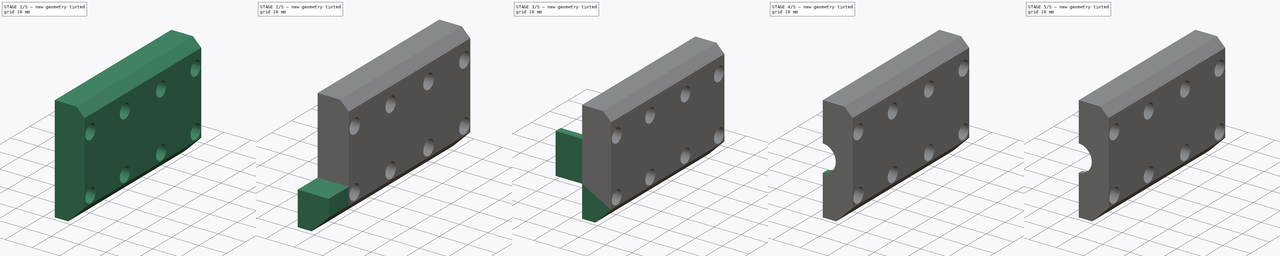
[diagram: build sequence overview — one tinted view per stage of 5, left to right]
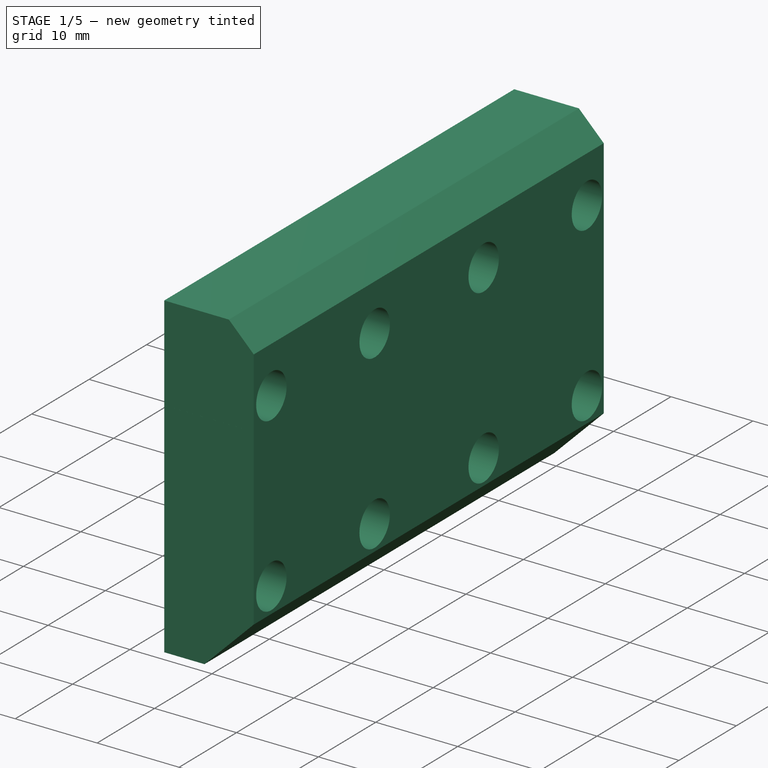
[diagram: stage 1 of 5 — iso view after this stage's code; geometry added in this stage tinted green]
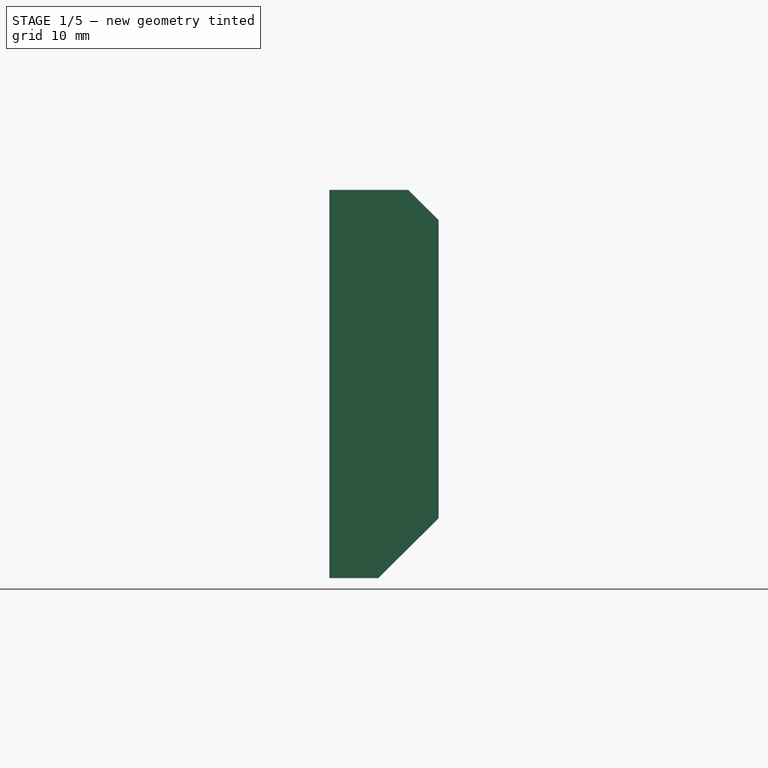
[diagram: stage 1 of 5 — front view after this stage's code; geometry added in this stage tinted green]
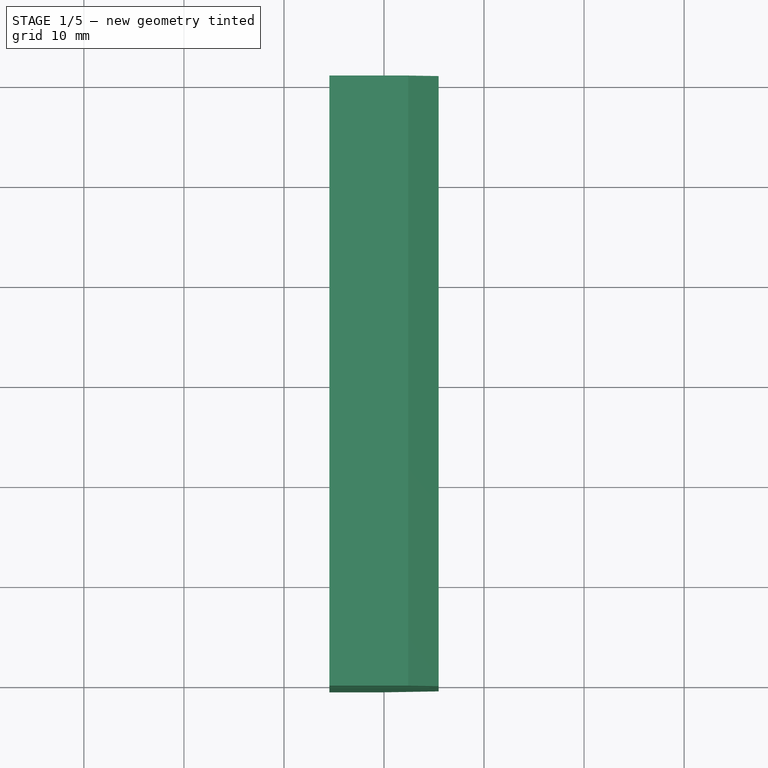
[diagram: stage 1 of 5 — top view after this stage's code; geometry added in this stage tinted green]
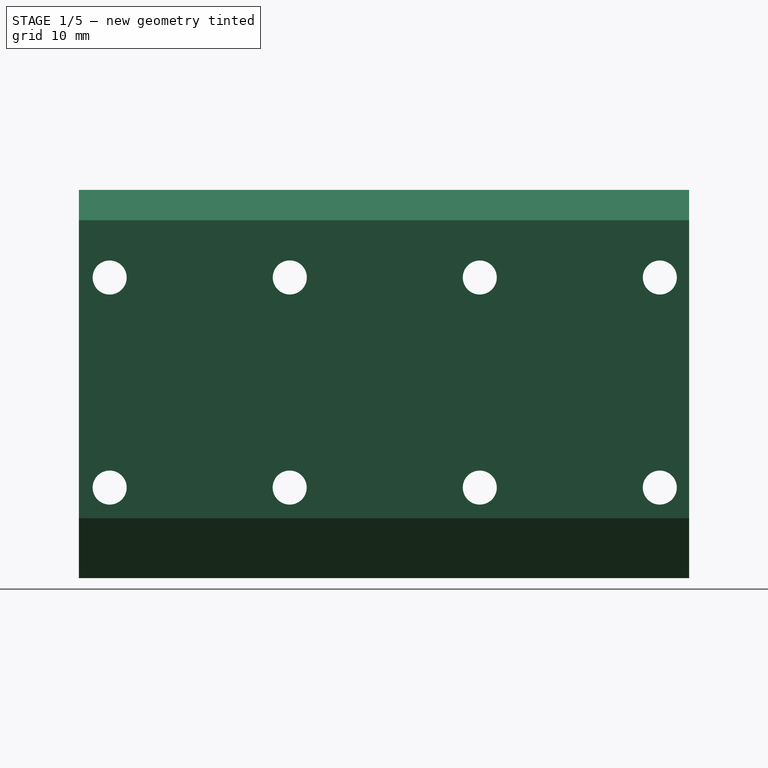
[diagram: stage 1 of 5 — right view after this stage's code; geometry added in this stage tinted green]
FCSTD DOCUMENT  (FreeCAD 1.0R39109 (Git))
Label: Y_clamp
License: All rights reserved
LicenseURL: http://en.wikipedia.org/wiki/All_rights_reserved
objects: PartDesign::Pocket×11, PartDesign::Pad×5, Sketcher::SketchObject×4, Part::Feature×1, PartDesign::FeatureBase×1, PartDesign::Body×1
note: 60 computed .brp shape members not serialized (recipe doc carries the construction recipe); baked Part::Feature solids carry a one-line shape summary decoded from their .brp

FEATURE [Part::Feature] Part__Feature  label="y_clamp1_003"
  shape: bbox 13.45 x 63.37 x 38.8 mm, 50 faces (baked)
FEATURE [PartDesign::FeatureBase] BaseFeature
  BaseFeature = -> Part__Feature
  Suppressed = false
FEATURE [Sketcher::SketchObject] Sketch
  ArcFitTolerance = 1e-06
  AttachmentSupport = -> [BaseFeature]
  FullyConstrained = false
  MakeInternals = false
  MapMode = 5
  Placement = pos=(-5.46015,0,0) rot=(0.57735,-0.57735,-0.57735;2.0944rad)
  sketch-geometry (12):
    g0: LineSegment StartX=-27.7532 StartY=-7.45947 StartZ=0 EndX=-27.7532 EndY=7.88783 EndZ=0
    g1: LineSegment StartX=-27.7532 StartY=7.88783 StartZ=0 EndX=-30.5087 EndY=7.88783 EndZ=0
    g2: LineSegment StartX=-30.5087 StartY=7.88783 StartZ=0 EndX=-30.5087 EndY=-7.45947 EndZ=0
    g3: LineSegment StartX=-30.5087 StartY=-7.45947 StartZ=0 EndX=-27.7532 EndY=-7.45947 EndZ=0
    g4: LineSegment StartX=-4.73293 StartY=7.83078 StartZ=0 EndX=-4.73293 EndY=-7.45929 EndZ=0
    g5: LineSegment StartX=-4.73293 StartY=-7.45929 StartZ=0 EndX=3.72291 EndY=-7.45929 EndZ=0
    g6: LineSegment StartX=3.72291 StartY=-7.45929 StartZ=0 EndX=3.72291 EndY=7.83078 EndZ=0
    g7: LineSegment StartX=3.72291 StartY=7.83078 StartZ=0 EndX=-4.73293 EndY=7.83078 EndZ=0
    g8: LineSegment StartX=30.5053 StartY=7.83924 StartZ=0 EndX=27.7605 EndY=7.83924 EndZ=0
    g9: LineSegment StartX=27.7605 StartY=7.83924 StartZ=0 EndX=27.7605 EndY=-7.46071 EndZ=0
    g10: LineSegment StartX=27.7605 StartY=-7.46071 StartZ=0 EndX=30.5053 EndY=-7.46071 EndZ=0
    g11: LineSegment StartX=30.5053 StartY=-7.46071 StartZ=0 EndX=30.5053 EndY=7.83924 EndZ=0
  constraints (24):
    c: Coincident(g0,g1)
    c: Coincident(g1,g2)
    c: Coincident(g2,g3)
    c: Coincident(g3,g0)
    c: Vertical(g0)
    c: Vertical(g2)
    c: Horizontal(g1)
    c: Horizontal(g3)
    c: Coincident(g4,g5)
    c: Coincident(g5,g6)
    c: Coincident(g6,g7)
    c: Coincident(g7,g4)
    c: Vertical(g4)
    c: Vertical(g6)
    c: Horizontal(g5)
    c: Horizontal(g7)
    c: Coincident(g8,g9)
    c: Coincident(g9,g10)
    c: Coincident(g10,g11)
    c: Coincident(g11,g8)
    c: Horizontal(g8)
    c: Horizontal(g10)
    c: Vertical(g9)
    c: Vertical(g11)
FEATURE [PartDesign::Pad] Pad
  BaseFeature = -> BaseFeature
  Direction = (-1,0,0)
  Length = 10
  Length2 = 10
  Profile = -> Sketch
  ReferenceAxis = -> Sketch [N_Axis]
  Refine = true
  Reversed = true
  Suppressed = false
  Type = 0
FEATURE [Sketcher::SketchObject] Sketch001
  ArcFitTolerance = 1e-06
  AttachmentSupport = -> [Pad]
  FullyConstrained = false
  MakeInternals = false
  MapMode = 5
  Placement = pos=(2.3e-15,30.498,1e-15) rot=(0,0.707107,0.707107;3.14159rad)
  sketch-geometry (4):
    g0: LineSegment StartX=-25.9816 StartY=36.0485 StartZ=0 EndX=-25.9816 EndY=-29.9255 EndZ=0
    g1: LineSegment StartX=-25.9816 StartY=-29.9255 StartZ=0 EndX=29.6287 EndY=-29.9255 EndZ=0
    g2: LineSegment StartX=29.6287 StartY=-29.9255 StartZ=0 EndX=29.6287 EndY=36.0485 EndZ=0
    g3: LineSegment StartX=29.6287 StartY=36.0485 StartZ=0 EndX=-25.9816 EndY=36.0485 EndZ=0
  constraints (8):
    c: Coincident(g0,g1)
    c: Coincident(g1,g2)
    c: Coincident(g2,g3)
    c: Coincident(g3,g0)
    c: Vertical(g0)
    c: Vertical(g2)
    c: Horizontal(g1)
    c: Horizontal(g3)
FEATURE [PartDesign::Pocket] Pocket
  BaseFeature = -> Pad
  Direction = (0,-1,2e-16)
  Length = 0.001
  Length2 = 5
  Profile = -> Sketch001
  ReferenceAxis = -> Sketch001 [N_Axis]
  Refine = true
  Suppressed = false
  Type = 0
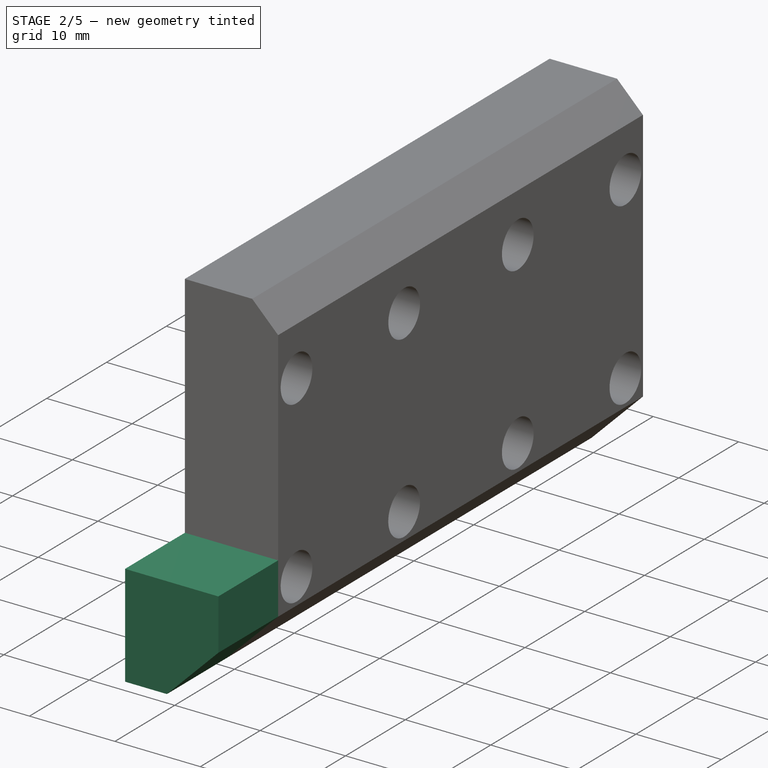
[diagram: stage 2 of 5 — iso view after this stage's code; geometry added in this stage tinted green]
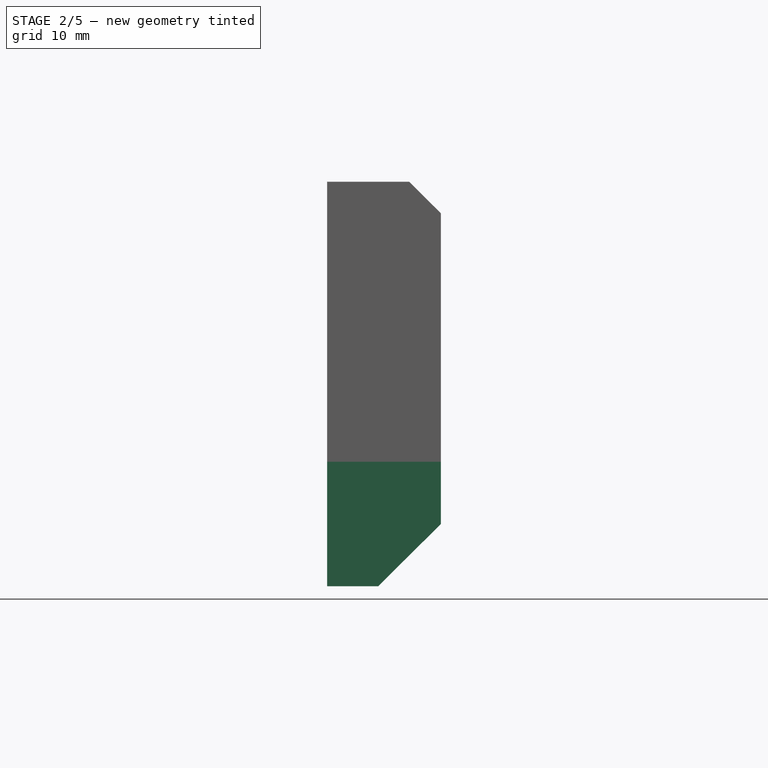
[diagram: stage 2 of 5 — front view after this stage's code; geometry added in this stage tinted green]
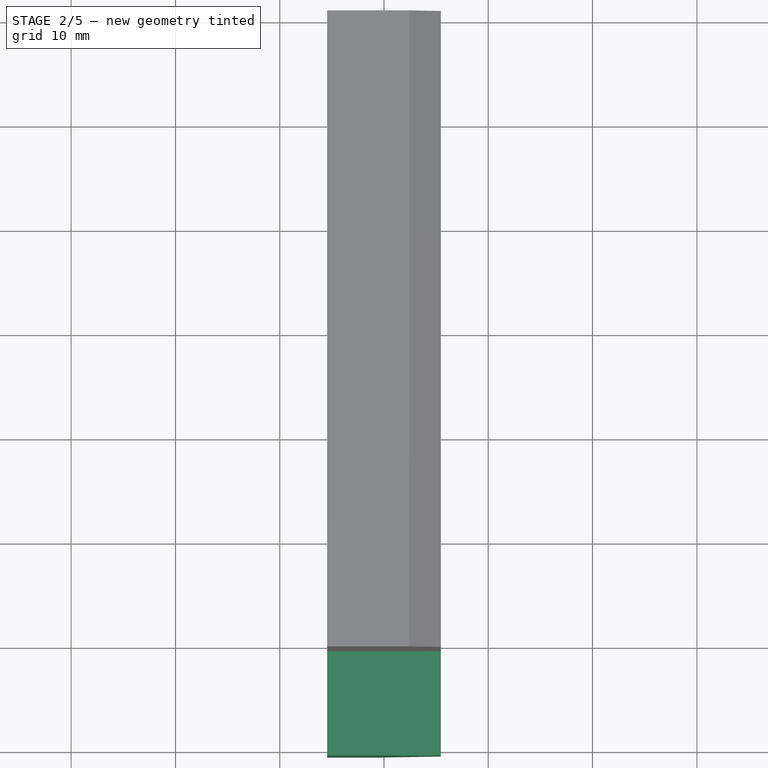
[diagram: stage 2 of 5 — top view after this stage's code; geometry added in this stage tinted green]
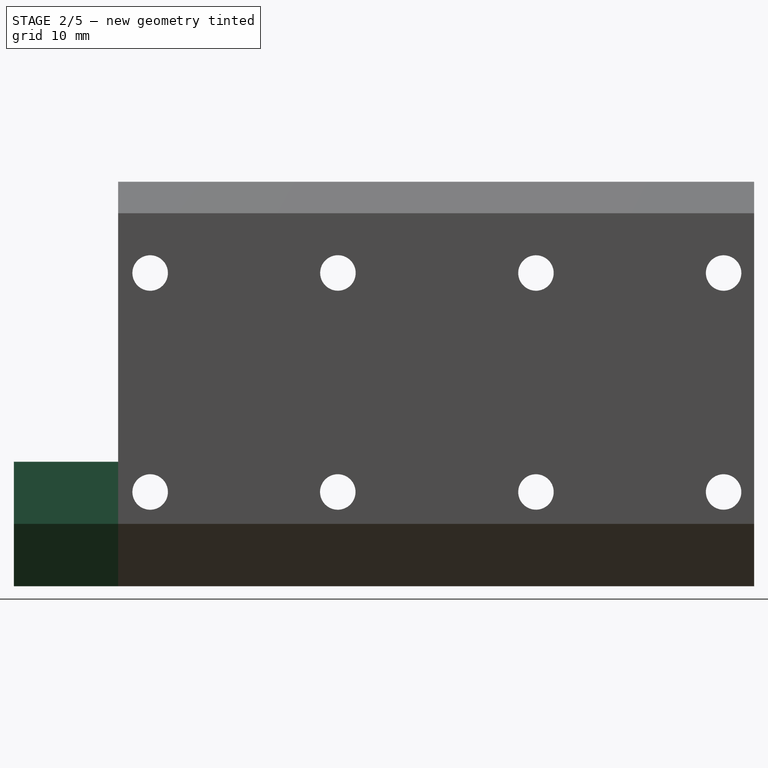
[diagram: stage 2 of 5 — right view after this stage's code; geometry added in this stage tinted green]
FEATURE [PartDesign::Pad] Pad001
  BaseFeature = -> Pocket
  Direction = (0,1,0)
  Length = 0.001
  Length2 = 10
  Profile = -> Pocket [Face14]
  Refine = true
  Suppressed = false
  Type = 0
FEATURE [PartDesign::Pad] Pad002
  BaseFeature = -> Pad001
  Direction = (0,-1,0)
  Length = 10
  Length2 = 10
  Profile = -> Pad001 [Face8]
  Refine = true
  Suppressed = false
  Type = 0
FEATURE [PartDesign::Pocket] Pocket001
  BaseFeature = -> Pad002
  Direction = (0,0,1)
  Length = 20
  Length2 = 5
  Profile = -> Pad002 [Face24]
  Refine = true
  Suppressed = false
  Type = 0
FEATURE [PartDesign::Pocket] Pocket002
  BaseFeature = -> Pocket001
  Direction = (1,0,0)
  Length = 5
  Length2 = 5
  Profile = -> Pocket001 [Face2,Face57]
  Refine = true
  Suppressed = false
  Type = 0
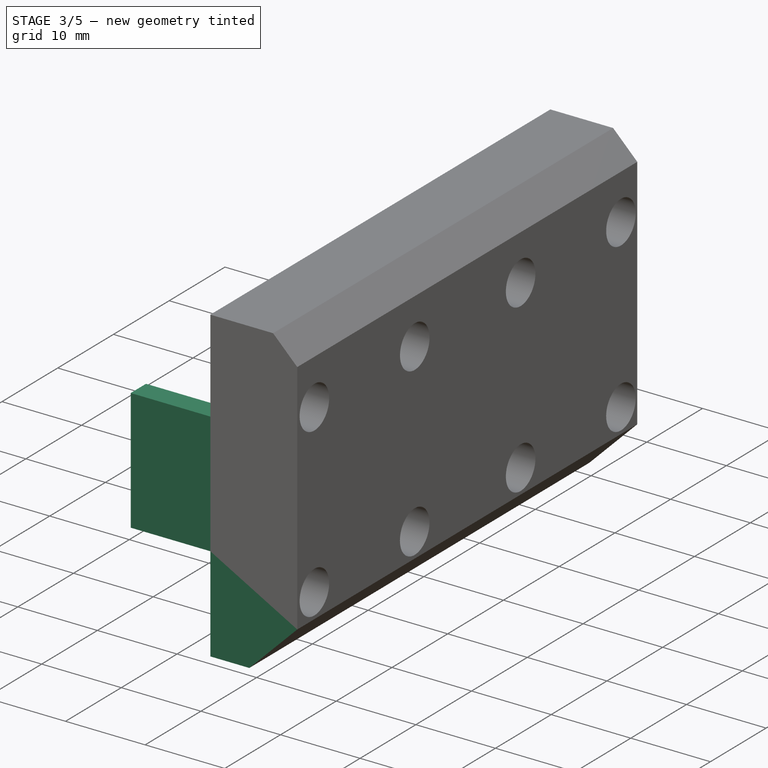
[diagram: stage 3 of 5 — iso view after this stage's code; geometry added in this stage tinted green]
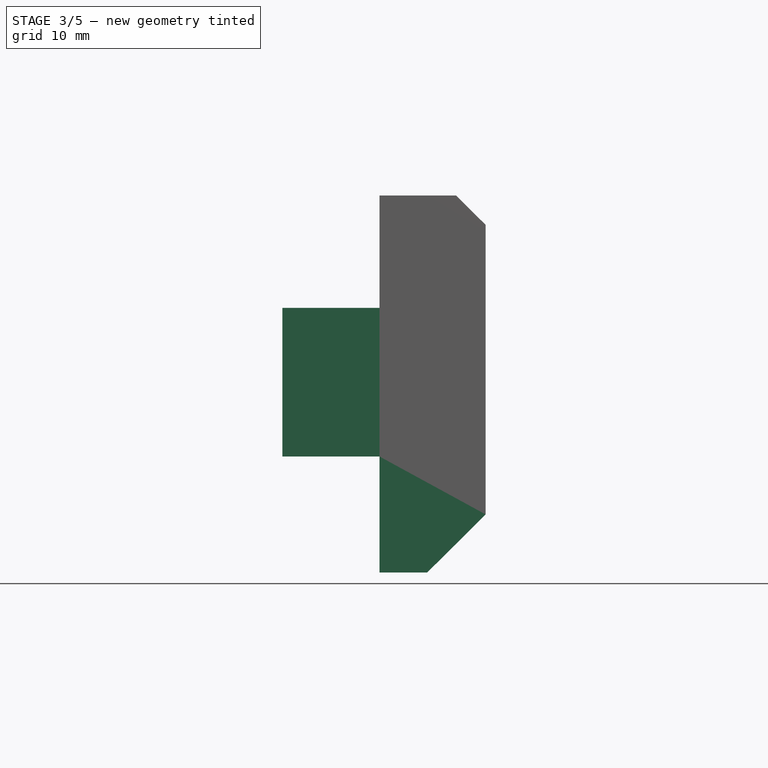
[diagram: stage 3 of 5 — front view after this stage's code; geometry added in this stage tinted green]
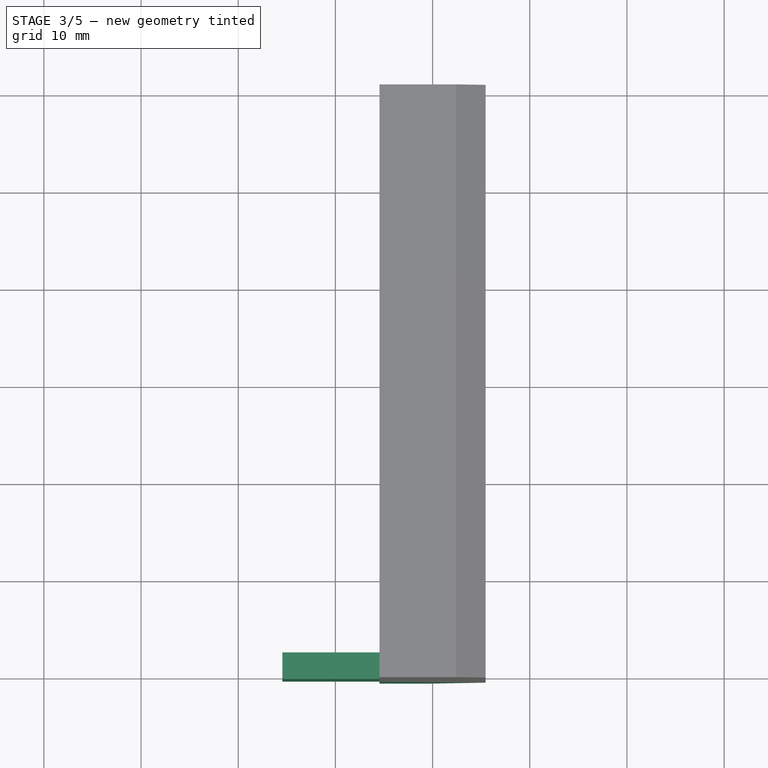
[diagram: stage 3 of 5 — top view after this stage's code; geometry added in this stage tinted green]
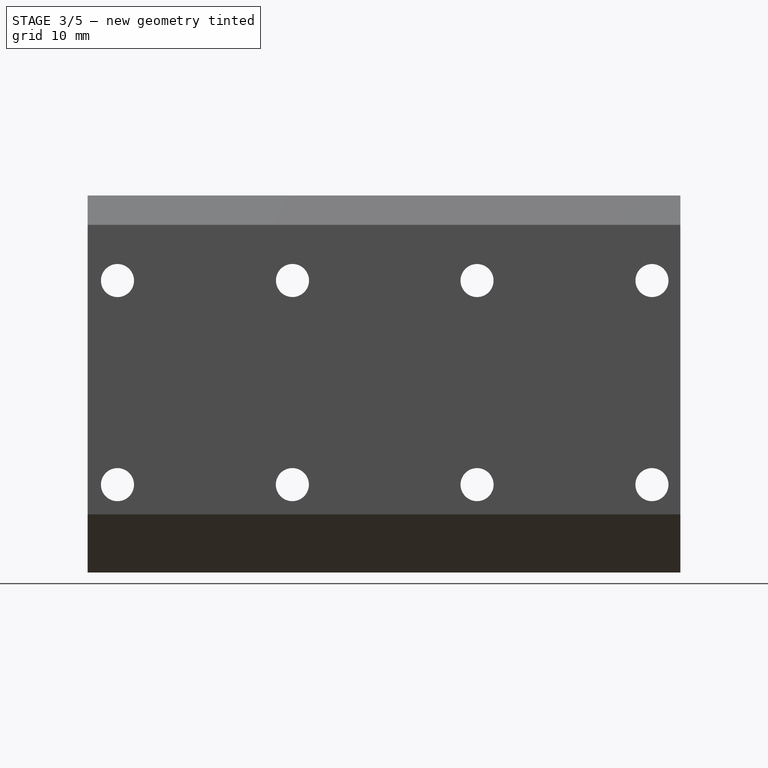
[diagram: stage 3 of 5 — right view after this stage's code; geometry added in this stage tinted green]
FEATURE [PartDesign::Pocket] Pocket003
  BaseFeature = -> Pocket002
  Direction = (0,0,-1)
  Length = 14
  Length2 = 5
  Profile = -> Pocket002 [Face6,Face5]
  Refine = true
  Suppressed = false
  Type = 0
FEATURE [PartDesign::Pad] Pad003
  BaseFeature = -> Pocket003
  Direction = (-1,0,0)
  Length = 10
  Length2 = 10
  Profile = -> Pocket003 [Face8]
  Refine = true
  Suppressed = false
  Type = 0
FEATURE [PartDesign::Pocket] Pocket004
  BaseFeature = -> Pad003
  Direction = (0,-1,-2e-16)
  Length = 5
  Length2 = 5
  Profile = -> Pad003 [Face31]
  Refine = true
  Suppressed = false
  Type = 0
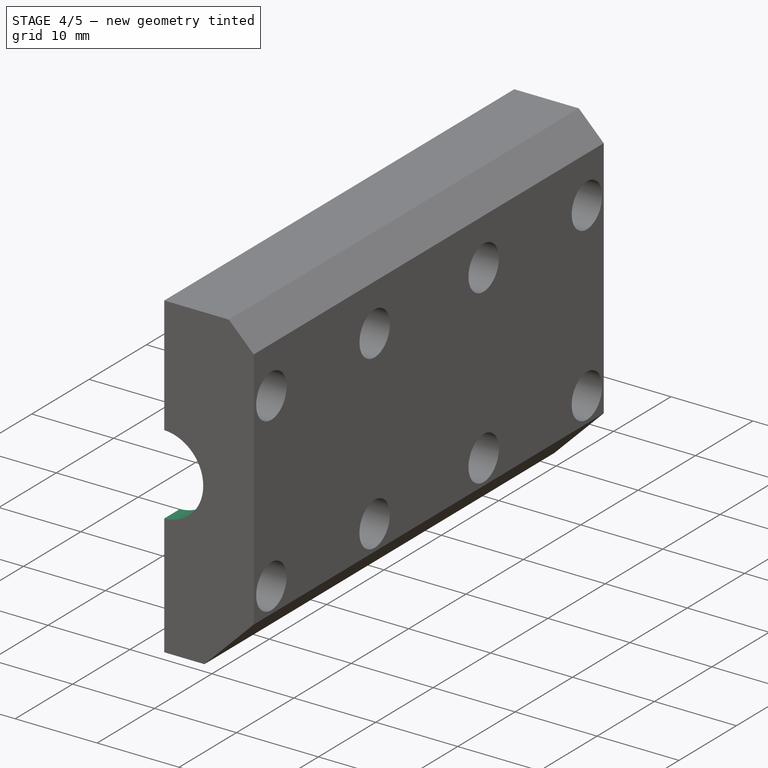
[diagram: stage 4 of 5 — iso view after this stage's code; geometry added in this stage tinted green]
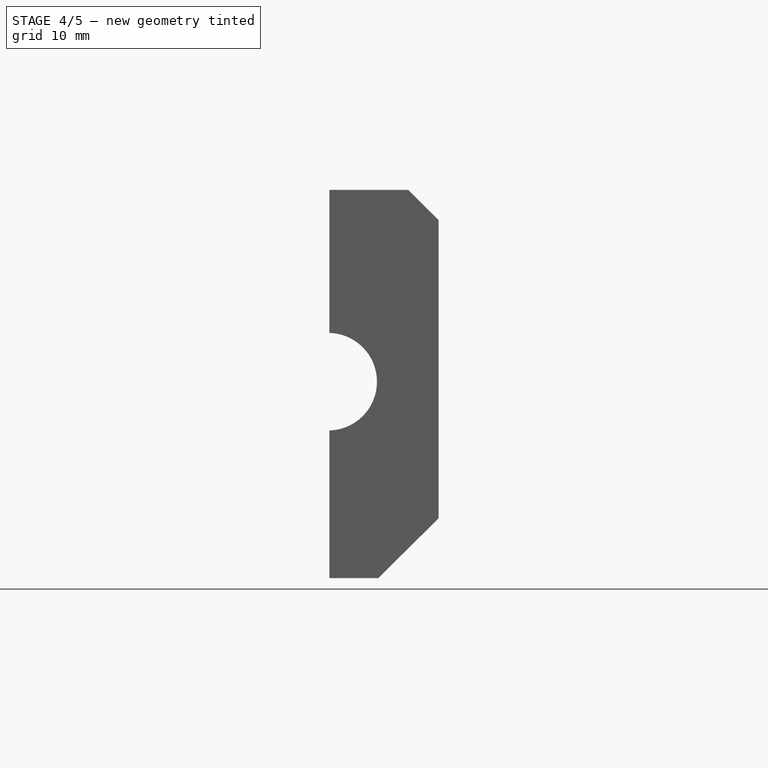
[diagram: stage 4 of 5 — front view after this stage's code; geometry added in this stage tinted green]
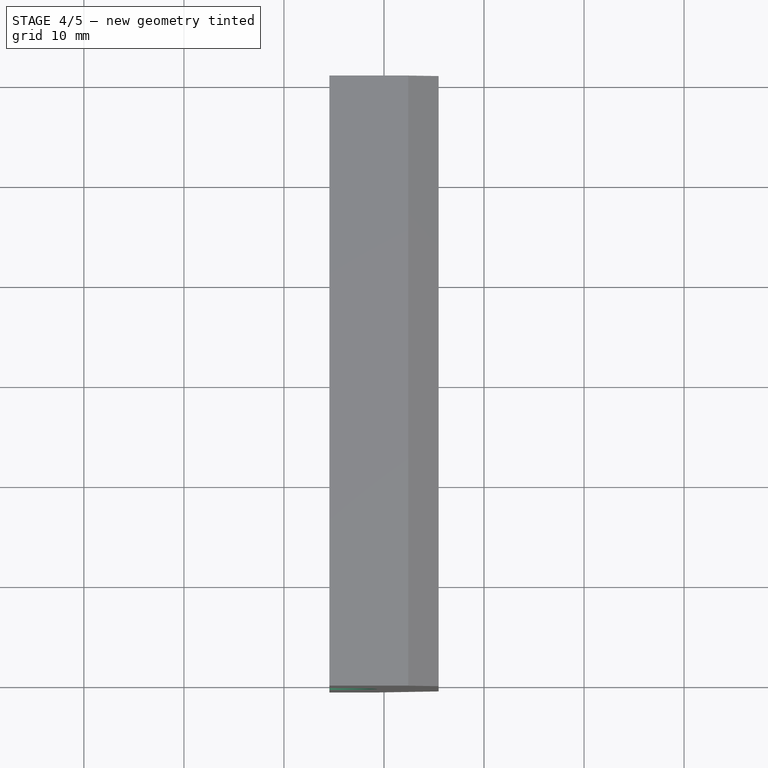
[diagram: stage 4 of 5 — top view after this stage's code; geometry added in this stage tinted green]
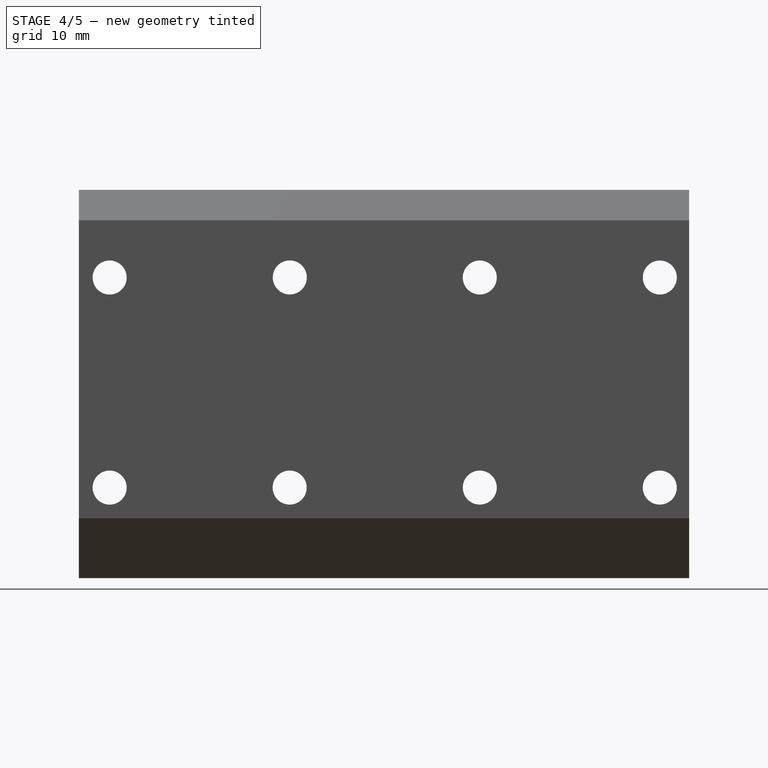
[diagram: stage 4 of 5 — right view after this stage's code; geometry added in this stage tinted green]
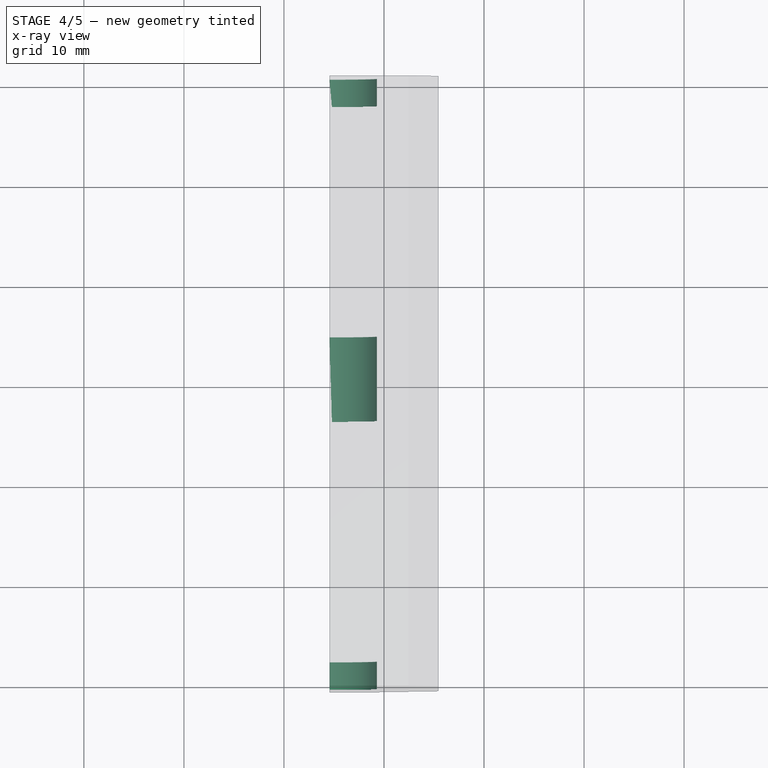
[diagram: stage 4 of 5 — x-ray composite at the top view; earlier geometry ghosted, this stage's added geometry solid]
FEATURE [PartDesign::Pocket] Pocket005
  BaseFeature = -> Pocket004
  Direction = (0,0,1)
  Length = 69
  Length2 = 5
  Midplane = true
  Profile = -> Pocket004 [Face13]
  Refine = true
  Suppressed = false
  Type = 0
FEATURE [Sketcher::SketchObject] Sketch002
  ArcFitTolerance = 1e-06
  AttachmentSupport = -> [Pocket005]
  FullyConstrained = false
  MakeInternals = false
  MapMode = 5
  Placement = pos=(0,30.498,0) rot=(0,0.707107,0.707107;3.14159rad)
  sketch-geometry (1):
    g0: Circle CenterX=5.57846 CenterY=0.230286 CenterZ=0 NormalX=0 NormalY=0 NormalZ=1 AngleXU=0 Radius=4.87337
FEATURE [PartDesign::Pocket] Pocket006
  BaseFeature = -> Pocket005
  Direction = (0,-1,2e-16)
  Length = 5
  Length2 = 5
  Profile = -> Sketch002
  ReferenceAxis = -> Sketch002 [N_Axis]
  Refine = true
  Suppressed = false
  Type = 1
FEATURE [Sketcher::SketchObject] Sketch003
  ArcFitTolerance = 1e-06
  AttachmentSupport = -> [Pocket006]
  FullyConstrained = false
  MakeInternals = false
  MapMode = 5
  Placement = pos=(-5.45832,0,0) rot=(0.57735,-0.57735,-0.57735;2.0944rad)
  sketch-geometry (4):
    g0: LineSegment StartX=-36.594 StartY=23.2312 StartZ=0 EndX=-36.594 EndY=-27.9561 EndZ=0
    g1: LineSegment StartX=-36.594 StartY=-27.9561 StartZ=0 EndX=44.4483 EndY=-27.9561 EndZ=0
    g2: LineSegment StartX=44.4483 StartY=-27.9561 StartZ=0 EndX=44.4483 EndY=23.2312 EndZ=0
    g3: LineSegment StartX=44.4483 StartY=23.2312 StartZ=0 EndX=-36.594 EndY=23.2312 EndZ=0
  constraints (8):
    c: Coincident(g0,g1)
    c: Coincident(g1,g2)
    c: Coincident(g2,g3)
    c: Coincident(g3,g0)
    c: Vertical(g0)
    c: Vertical(g2)
    c: Horizontal(g1)
    c: Horizontal(g3)
FEATURE [PartDesign::Pad] Pad004
  BaseFeature = -> Pocket006
  Direction = (-1,0,0)
  Length = 10
  Length2 = 10
  Profile = -> Sketch003
  ReferenceAxis = -> Sketch003 [N_Axis]
  Refine = true
  Suppressed = false
  Type = 0
FEATURE [PartDesign::Pocket] Pocket007
  BaseFeature = -> Pad004
  Direction = (0,0,1)
  Length = 5
  Length2 = 5
  Profile = -> Pad004 [Face35]
  Refine = true
  Suppressed = false
  Type = 1
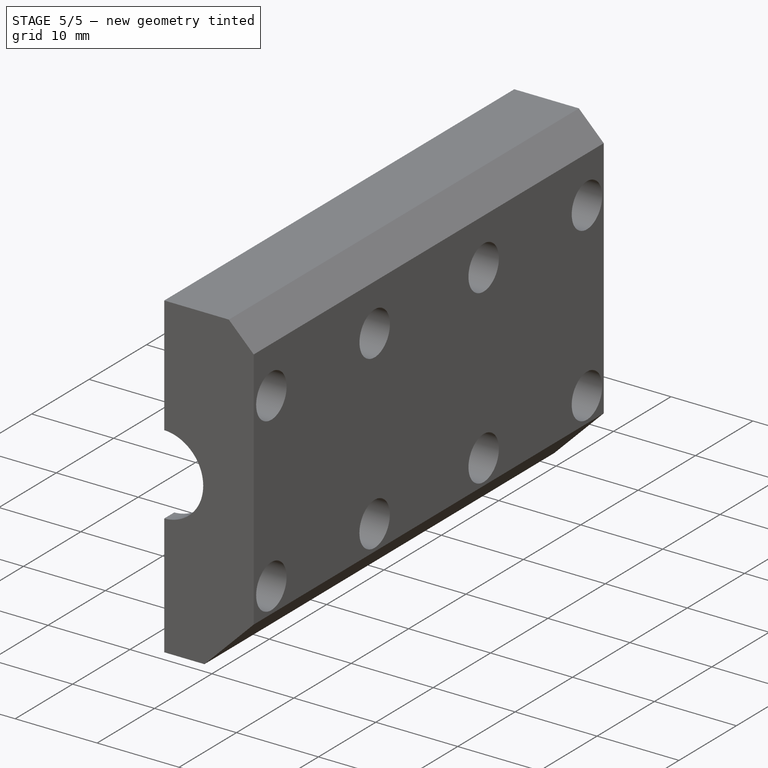
[diagram: stage 5 of 5 — iso view after this stage's code; geometry added in this stage tinted green]
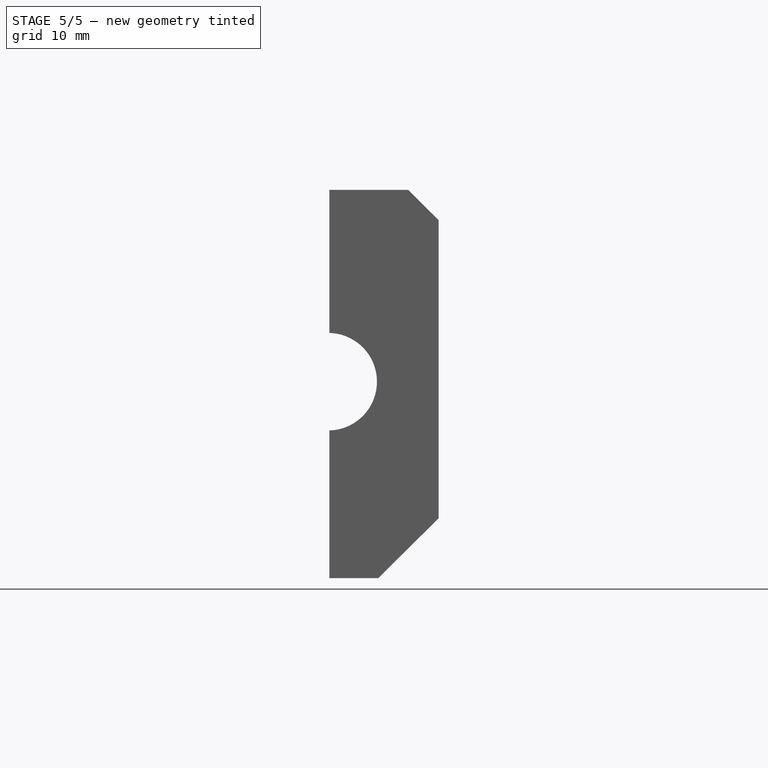
[diagram: stage 5 of 5 — front view after this stage's code; geometry added in this stage tinted green]
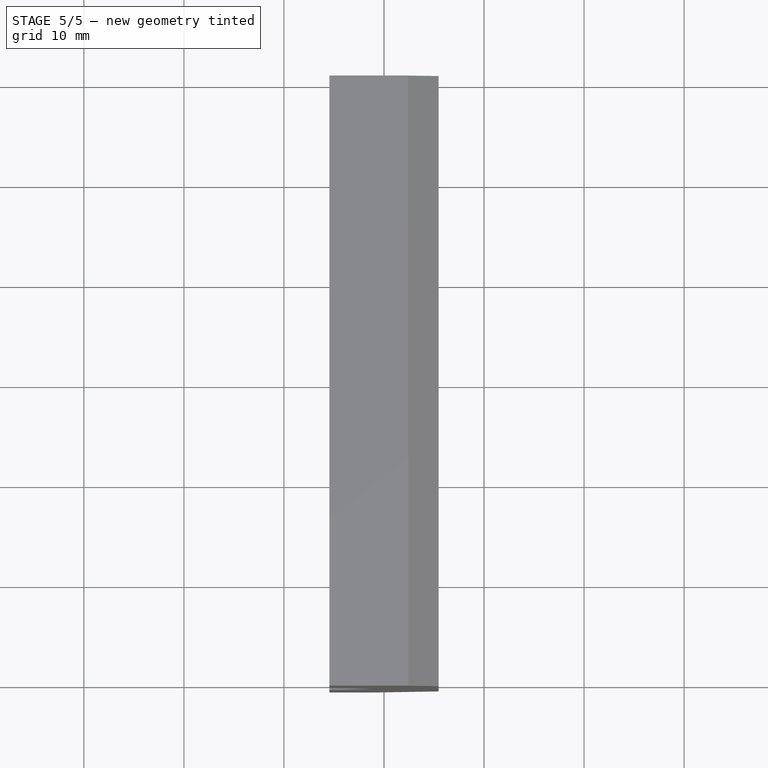
[diagram: stage 5 of 5 — top view after this stage's code; geometry added in this stage tinted green]
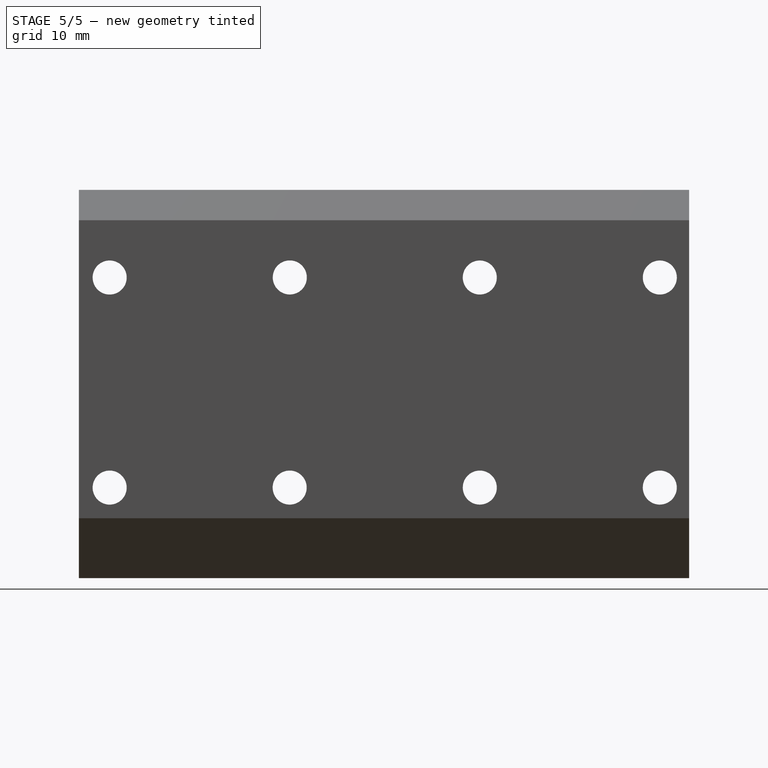
[diagram: stage 5 of 5 — right view after this stage's code; geometry added in this stage tinted green]
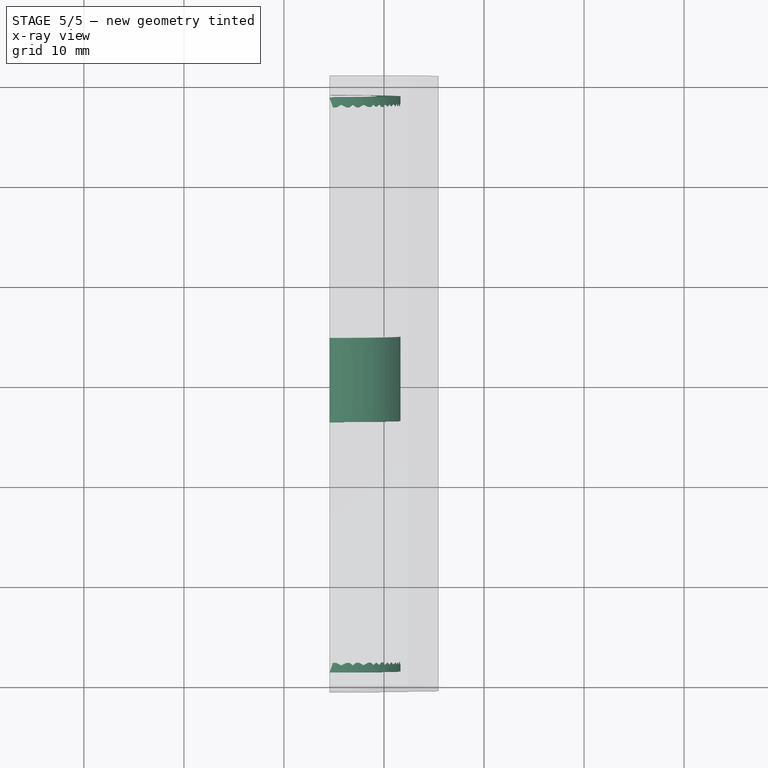
[diagram: stage 5 of 5 — x-ray composite at the top view; earlier geometry ghosted, this stage's added geometry solid]
FEATURE [PartDesign::Pocket] Pocket008
  BaseFeature = -> Pocket007
  Direction = (0,-1,0)
  Length = 0
  Length2 = 5
  Profile = -> Pocket007 [Face37]
  Refine = true
  Suppressed = false
  Type = 3
  UpToFace = -> Pocket007 [Face39]
FEATURE [PartDesign::Pocket] Pocket009
  BaseFeature = -> Pocket008
  Direction = (0,1,0)
  Length = 1
  Length2 = 5
  Profile = -> Pocket008 [Face35]
  Refine = true
  Suppressed = false
  Type = 0
FEATURE [PartDesign::Pocket] Pocket010
  BaseFeature = -> Pocket009
  Direction = (0,-1,0)
  Length = 1
  Length2 = 5
  Profile = -> Pocket009 [Face40]
  Refine = true
  Suppressed = false
  Type = 0
FEATURE [PartDesign::Body] Body
  AllowCompound = false
  BaseFeature = -> Part__Feature
  Group = -> [BaseFeature,Sketch,Pad,Sketch001,Pocket,Pad001,Pad002,Pocket001,Pocket002,Pocket003,Pad003,Pocket004,Pocket005,Sketch002,Pocket006,Sketch003,Pad004,Pocket007,Pocket008,Pocket009,Pocket010]
  Origin = -> Origin
  Tip = -> Pocket010
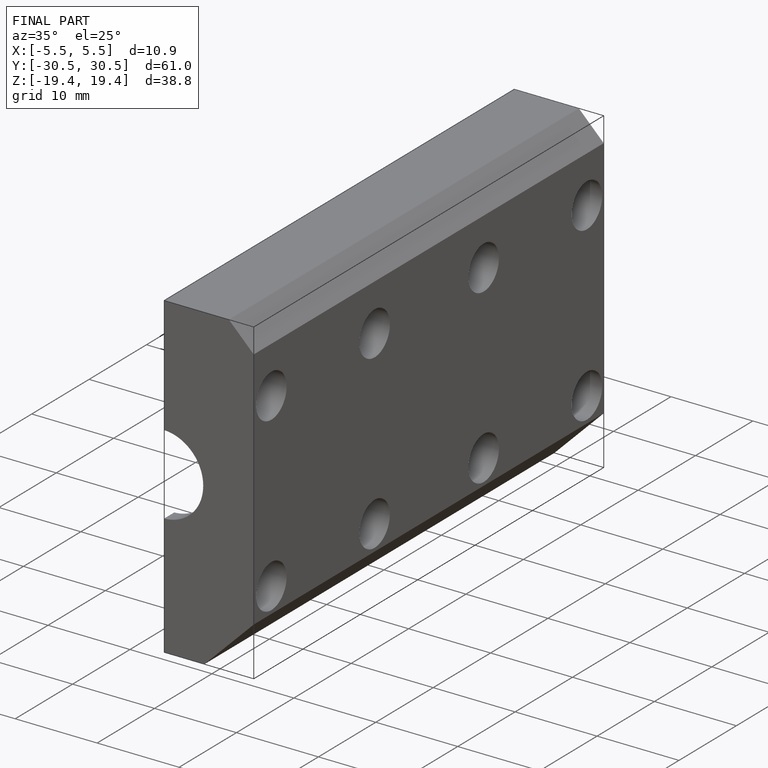
[diagram: finished part — iso view with bounding-box wireframe]
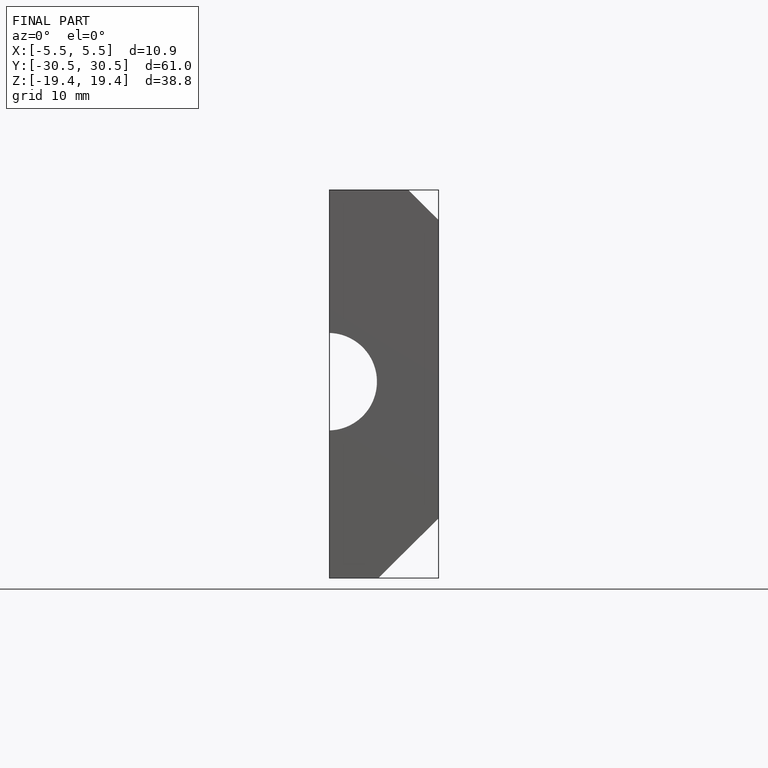
[diagram: finished part — front view with bounding-box wireframe]
